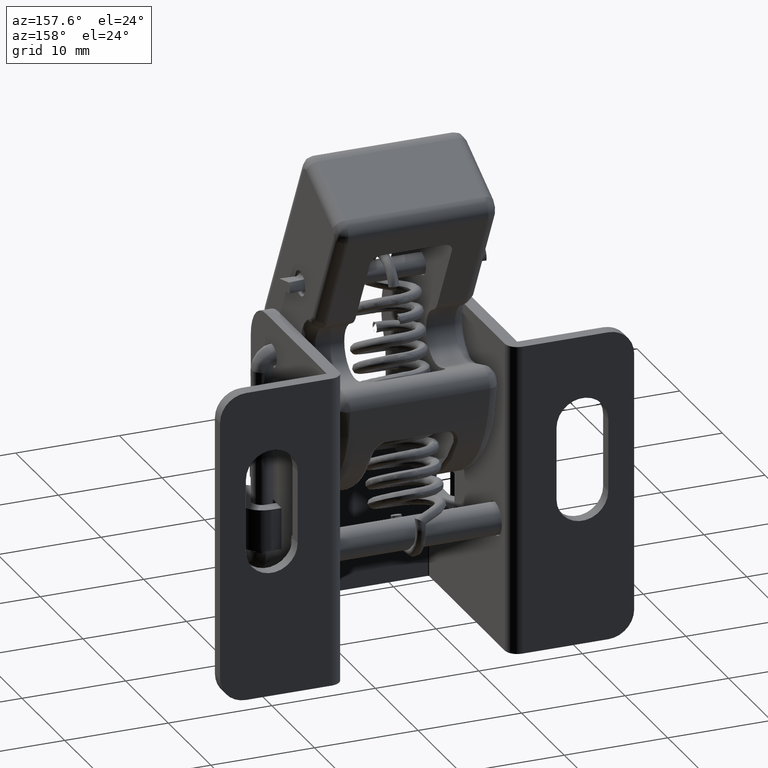
[diagram: clean part render]
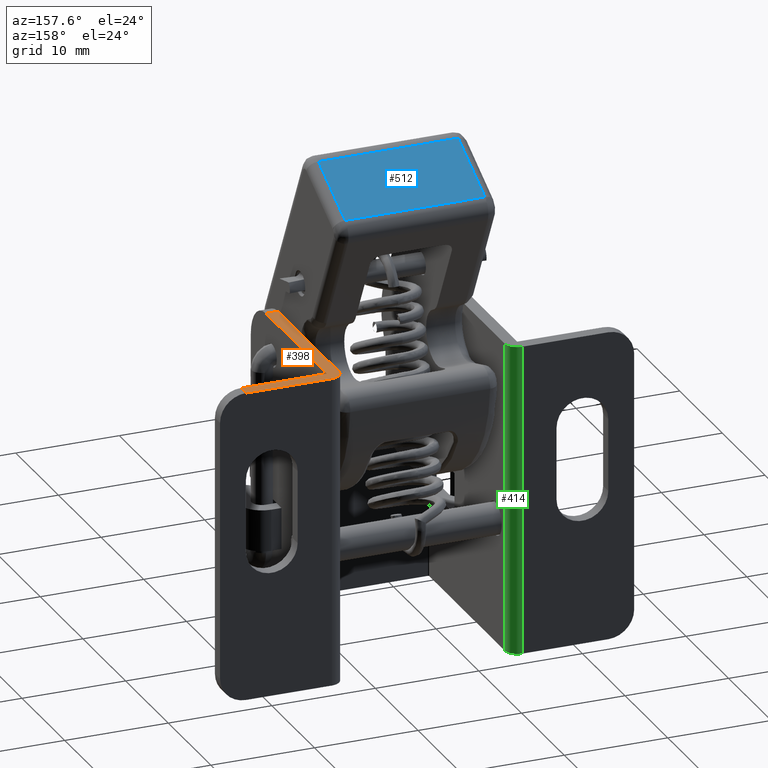
[diagram: same view with three faces highlighted in distinct colors, each labeled with its STEP entity id]
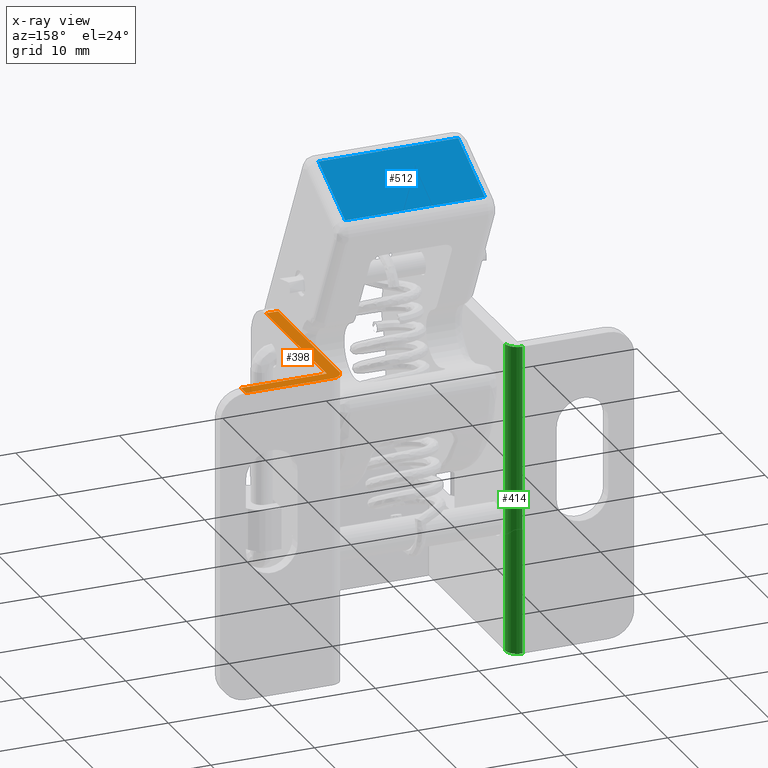
[diagram: x-ray of the same camera — body ghosted, the three highlighted faces saturated]
A machine part, auxiliary view with three faces highlighted in distinct colors.
The next image is the same camera in x-ray (body ghosted, the three faces saturated) — at least one of them is partly hidden behind the body in this view.
Their STEP definitions:

[orange] entity #398 — the highlighted planar face has unit normal (0, 0, -1).
#398=ADVANCED_FACE('',(#1631),#1630,.F.);
#1630=PLANE('',#4770);
#1631=FACE_OUTER_BOUND('',#4771,.T.);
#4767=CARTESIAN_POINT('',(3.34499840000E+01,-1.70500000000E+01,1.20000000000E+01));
#4768=DIRECTION('',(0.00000000000E+00,0.00000000000E+00,-1.00000000000E+00));
#4769=DIRECTION('',(-1.00000000000E+00,0.00000000000E+00,0.00000000000E+00));
#4770=AXIS2_PLACEMENT_3D('',#4767,#4768,#4769);
#4771=EDGE_LOOP('',(#11407,#11408,#11409,#11410,#11411,#11412,#11413));
#11407=ORIENTED_EDGE('',*,*,#12774,.F.);
#11408=ORIENTED_EDGE('',*,*,#12775,.T.);
#11409=ORIENTED_EDGE('',*,*,#12776,.F.);
#11410=ORIENTED_EDGE('',*,*,#12752,.T.);
#11411=ORIENTED_EDGE('',*,*,#12683,.F.);
#11412=ORIENTED_EDGE('',*,*,#12768,.F.);
#11413=ORIENTED_EDGE('',*,*,#12736,.T.);
#12683=EDGE_CURVE('',#14714,#14721,#14722,.T.);
#12736=EDGE_CURVE('',#15081,#15073,#15082,.T.);
#12752=EDGE_CURVE('',#15189,#14721,#15190,.T.);
#12768=EDGE_CURVE('',#15081,#14714,#15290,.T.);
#12774=EDGE_CURVE('',#15330,#15073,#15331,.T.);
#12775=EDGE_CURVE('',#15330,#15337,#15338,.T.);
#12776=EDGE_CURVE('',#15189,#15337,#15344,.T.);
#14714=VERTEX_POINT('',#19484);
#14721=VERTEX_POINT('',#19488);
#14722=LINE('',#19489,#19490);
#15073=VERTEX_POINT('',#19701);
#15081=VERTEX_POINT('',#19707);
#15082=LINE('',#19708,#19709);
#15189=VERTEX_POINT('',#19775);
#15190=LINE('',#19776,#19777);
#15290=LINE('',#19843,#19844);
#15330=VERTEX_POINT('',#19867);
#15331=LINE('',#19868,#19869);
#15337=VERTEX_POINT('',#19871);
#15338=CIRCLE('',#19875,1.20000000000E+00);
#15344=LINE('',#19876,#19877);
#19484=CARTESIAN_POINT('',(2.41999970000E+01,-1.20001200000E+00,1.20000000000E+01));
#19488=CARTESIAN_POINT('',(2.41999970000E+01,-1.55000000000E+01,1.20000000000E+01));
#19489=CARTESIAN_POINT('',(2.41999970000E+01,-1.20001200000E+00,1.20000000000E+01));
#19490=VECTOR('',#19491,1.42999880000E+01);
#19491=DIRECTION('',(0.00000000000E+00,-1.00000000000E+00,0.00000000000E+00));
#19701=CARTESIAN_POINT('',(3.24999840000E+01,0.00000000000E+00,1.20000000000E+01));
#19707=CARTESIAN_POINT('',(3.24999840000E+01,-1.20001200000E+00,1.20000000000E+01));
#19708=CARTESIAN_POINT('',(3.24999840000E+01,-1.20001200000E+00,1.20000000000E+01));
#19709=VECTOR('',#19710,1.20001200000E+00);
#19710=DIRECTION('',(0.00000000000E+00,1.00000000000E+00,0.00000000000E+00));
#19775=CARTESIAN_POINT('',(2.29999840000E+01,-1.55000000000E+01,1.20000000000E+01));
#19776=CARTESIAN_POINT('',(2.29999840000E+01,-1.55000000000E+01,1.20000000000E+01));
#19777=VECTOR('',#19778,1.20001300000E+00);
#19778=DIRECTION('',(1.00000000000E+00,0.00000000000E+00,0.00000000000E+00));
#19843=CARTESIAN_POINT('',(3.24999840000E+01,-1.20001200000E+00,1.20000000000E+01));
#19844=VECTOR('',#19845,8.29998700000E+00);
#19845=DIRECTION('',(-1.00000000000E+00,0.00000000000E+00,0.00000000000E+00));
#19867=CARTESIAN_POINT('',(2.41999840000E+01,0.00000000000E+00,1.20000000000E+01));
#19868=CARTESIAN_POINT('',(2.41999840000E+01,0.00000000000E+00,1.20000000000E+01));
#19869=VECTOR('',#19870,8.30000000000E+00);
#19870=DIRECTION('',(1.00000000000E+00,0.00000000000E+00,0.00000000000E+00));
#19871=CARTESIAN_POINT('',(2.29999840000E+01,-1.20000000000E+00,1.20000000000E+01));
#19872=CARTESIAN_POINT('',(2.41999840000E+01,-1.20000000000E+00,1.20000000000E+01));
#19873=DIRECTION('',(0.00000000000E+00,-0.00000000000E+00,1.00000000000E+00));
#19874=DIRECTION('',(-0.00000000000E+00,-1.00000000000E+00,-0.00000000000E+00));
#19875=AXIS2_PLACEMENT_3D('',#19872,#19873,#19874);
#19876=CARTESIAN_POINT('',(2.29999840000E+01,-1.55000000000E+01,1.20000000000E+01));
#19877=VECTOR('',#19878,1.43000000000E+01);
#19878=DIRECTION('',(0.00000000000E+00,1.00000000000E+00,0.00000000000E+00));

[blue] entity #512 — the highlighted planar face has unit normal (0, -0.454, -0.891).
#512=ADVANCED_FACE('',(#2786),#2785,.F.);
#2785=PLANE('',#5949);
#2786=FACE_OUTER_BOUND('',#5950,.T.);
#5946=CARTESIAN_POINT('',(-1.25055521494E-13,-8.10000000000E+00,9.20000000000E+00));
#5947=DIRECTION('',(1.00000000000E+00,-0.00000000000E+00,1.62409768174E-14));
#5948=DIRECTION('',(1.62409768174E-14,0.00000000000E+00,-1.00000000000E+00));
#5949=AXIS2_PLACEMENT_3D('',#5946,#5947,#5948);
#5950=EDGE_LOOP('',(#12007,#12008,#12009,#12010));
#12007=ORIENTED_EDGE('',*,*,#12940,.F.);
#12008=ORIENTED_EDGE('',*,*,#12987,.T.);
#12009=ORIENTED_EDGE('',*,*,#13054,.T.);
#12010=ORIENTED_EDGE('',*,*,#13021,.T.);
#12940=EDGE_CURVE('',#16414,#16421,#16422,.T.);
#12987=EDGE_CURVE('',#16414,#16736,#16743,.T.);
#13021=EDGE_CURVE('',#16952,#16421,#16959,.T.);
#13054=EDGE_CURVE('',#16736,#16952,#17175,.T.);
#16414=VERTEX_POINT('',#20553);
#16421=VERTEX_POINT('',#20558);
#16422=LINE('',#20559,#20560);
#16736=VERTEX_POINT('',#20769);
#16743=LINE('',#20774,#20775);
#16952=VERTEX_POINT('',#20912);
#16959=LINE('',#20917,#20918);
#17175=LINE('',#21061,#21062);
#20553=CARTESIAN_POINT('',(-1.13686837722E-13,6.75000000000E+00,8.50000000000E+00));
#20558=CARTESIAN_POINT('',(-1.13686837722E-13,-6.75000000000E+00,8.50000000000E+00));
#20559=CARTESIAN_POINT('',(-1.13686837722E-13,6.75000000000E+00,8.50000000000E+00));
#20560=VECTOR('',#20561,1.35000000000E+01);
#20561=DIRECTION('',(0.00000000000E+00,-1.00000000000E+00,0.00000000000E+00));
#20769=CARTESIAN_POINT('',(0.00000000000E+00,6.75000000000E+00,1.50000000000E+00));
#20774=CARTESIAN_POINT('',(-1.13686837722E-13,6.75000000000E+00,8.50000000000E+00));
#20775=VECTOR('',#20776,7.00000000000E+00);
#20776=DIRECTION('',(1.62409768174E-14,0.00000000000E+00,-1.00000000000E+00));
#20912=CARTESIAN_POINT('',(0.00000000000E+00,-6.75000000000E+00,1.50000000000E+00));
#20917=CARTESIAN_POINT('',(3.78653234506E-29,-6.75000000000E+00,1.50000000000E+00));
#20918=VECTOR('',#20919,7.00000000000E+00);
#20919=DIRECTION('',(-1.62409768174E-14,0.00000000000E+00,1.00000000000E+00));
#21061=CARTESIAN_POINT('',(0.00000000000E+00,6.75000000000E+00,1.50000000000E+00));
#21062=VECTOR('',#21063,1.35000000000E+01);
#21063=DIRECTION('',(0.00000000000E+00,-1.00000000000E+00,0.00000000000E+00));

[green] entity #414 — the highlighted cylindrical surface (edge-blend (fillet) strip) has radius 1.2 mm, axis along (0, 0, -1).
#414=ADVANCED_FACE('',(#1792),#1791,.T.);
#1791=CYLINDRICAL_SURFACE('',#4851,1.20000000000E+00);
#1792=FACE_OUTER_BOUND('',#4852,.T.);
#4848=CARTESIAN_POINT('',(5.80000000000E+00,-1.20000000000E+00,-3.00000000000E+00));
#4849=DIRECTION('',(-0.00000000000E+00,0.00000000000E+00,-1.00000000000E+00));
#4850=DIRECTION('',(-1.00000000000E+00,-0.00000000000E+00,-0.00000000000E+00));
#4851=AXIS2_PLACEMENT_3D('',#4848,#4849,#4850);
#4852=EDGE_LOOP('',(#11492,#11493,#11494,#11495));
#11492=ORIENTED_EDGE('',*,*,#12811,.F.);
#11493=ORIENTED_EDGE('',*,*,#12812,.F.);
#11494=ORIENTED_EDGE('',*,*,#12703,.F.);
#11495=ORIENTED_EDGE('',*,*,#12813,.F.);
#12703=EDGE_CURVE('',#14851,#14858,#14859,.T.);
#12811=EDGE_CURVE('',#15571,#15572,#15573,.T.);
#12812=EDGE_CURVE('',#14858,#15571,#15579,.T.);
#12813=EDGE_CURVE('',#15572,#14851,#15585,.T.);
#14851=VERTEX_POINT('',#19568);
#14858=VERTEX_POINT('',#19572);
#14859=CIRCLE('',#19576,1.20000000000E+00);
#15571=VERTEX_POINT('',#20007);
#15572=VERTEX_POINT('',#20008);
#15573=CIRCLE('',#20012,1.20000000000E+00);
#15579=LINE('',#20013,#20014);
#15585=LINE('',#20016,#20017);
#19568=CARTESIAN_POINT('',(5.80000000000E+00,0.00000000000E+00,-1.80000000000E+01));
#19572=CARTESIAN_POINT('',(7.00000000000E+00,-1.20000000000E+00,-1.80000000000E+01));
#19573=CARTESIAN_POINT('',(5.80000000000E+00,-1.20000000000E+00,-1.80000000000E+01));
#19574=DIRECTION('',(0.00000000000E+00,0.00000000000E+00,-1.00000000000E+00));
#19575=DIRECTION('',(-0.00000000000E+00,-1.00000000000E+00,-0.00000000000E+00));
#19576=AXIS2_PLACEMENT_3D('',#19573,#19574,#19575);
#20007=CARTESIAN_POINT('',(7.00000000000E+00,-1.20000000000E+00,1.20000000000E+01));
#20008=CARTESIAN_POINT('',(5.80000000000E+00,0.00000000000E+00,1.20000000000E+01));
#20009=CARTESIAN_POINT('',(5.80000000000E+00,-1.20000000000E+00,1.20000000000E+01));
#20010=DIRECTION('',(0.00000000000E+00,-0.00000000000E+00,1.00000000000E+00));
#20011=DIRECTION('',(-1.00000000000E+00,-0.00000000000E+00,-0.00000000000E+00));
#20012=AXIS2_PLACEMENT_3D('',#20009,#20010,#20011);
#20013=CARTESIAN_POINT('',(7.00000000000E+00,-1.20000000000E+00,-1.80000000000E+01));
#20014=VECTOR('',#20015,3.00000000000E+01);
#20015=DIRECTION('',(0.00000000000E+00,0.00000000000E+00,1.00000000000E+00));
#20016=CARTESIAN_POINT('',(5.80000000000E+00,0.00000000000E+00,1.20000000000E+01));
#20017=VECTOR('',#20018,3.00000000000E+01);
#20018=DIRECTION('',(0.00000000000E+00,0.00000000000E+00,-1.00000000000E+00));